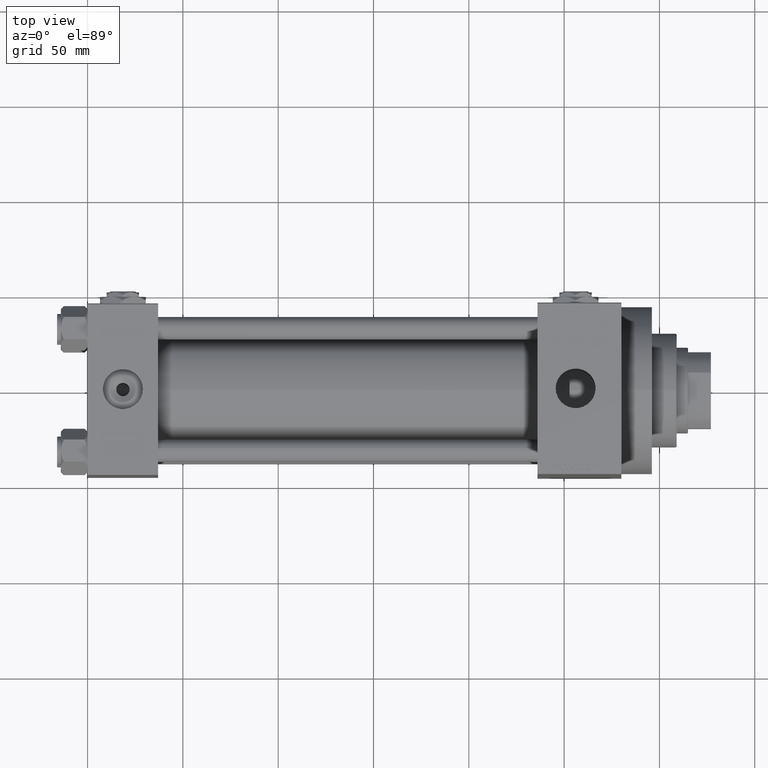
[diagram: clean part render]
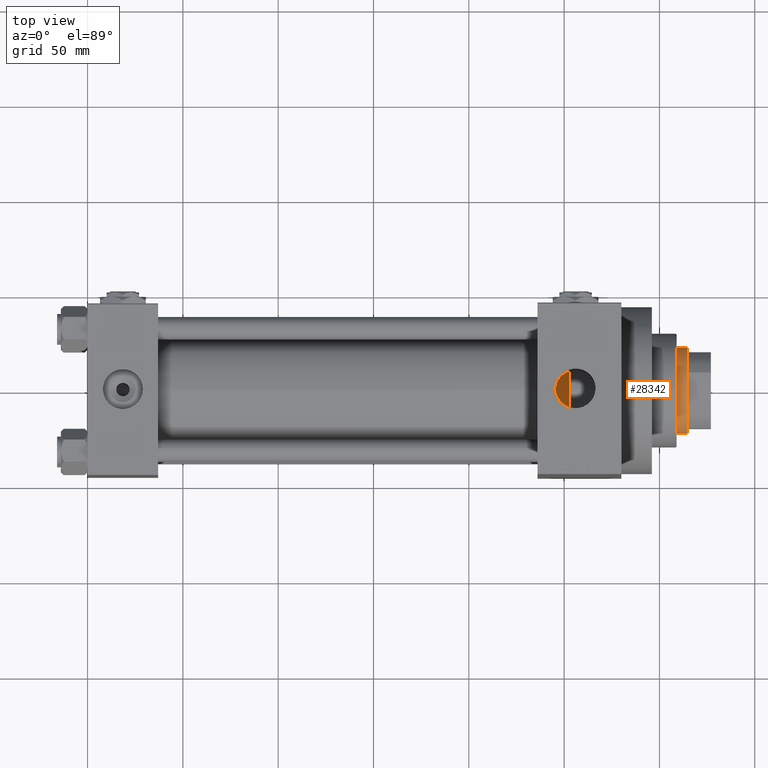
[diagram: same view with one face highlighted and labeled with its STEP entity id]
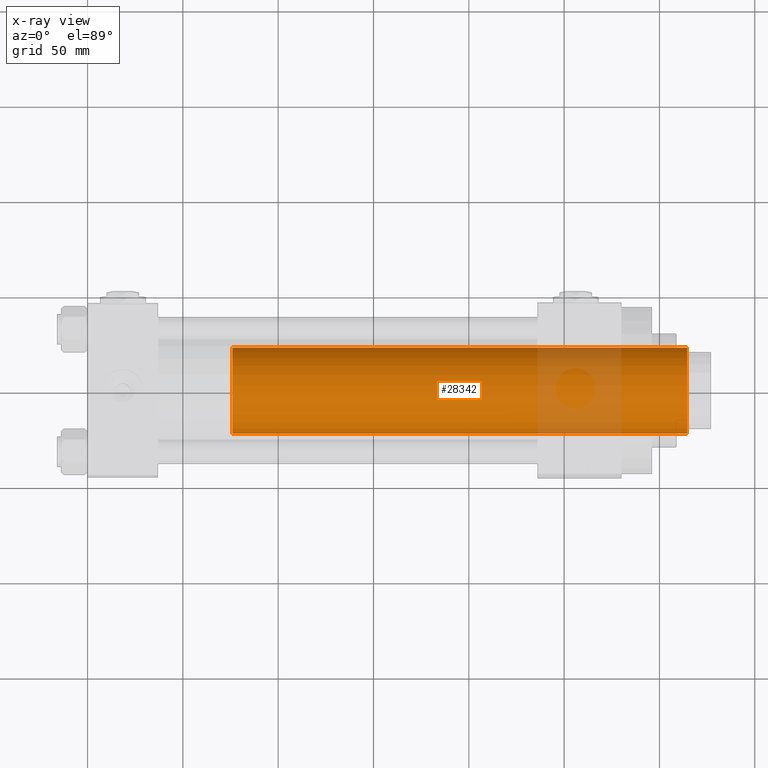
[diagram: x-ray of the same camera — body ghosted, the highlighted face saturated]
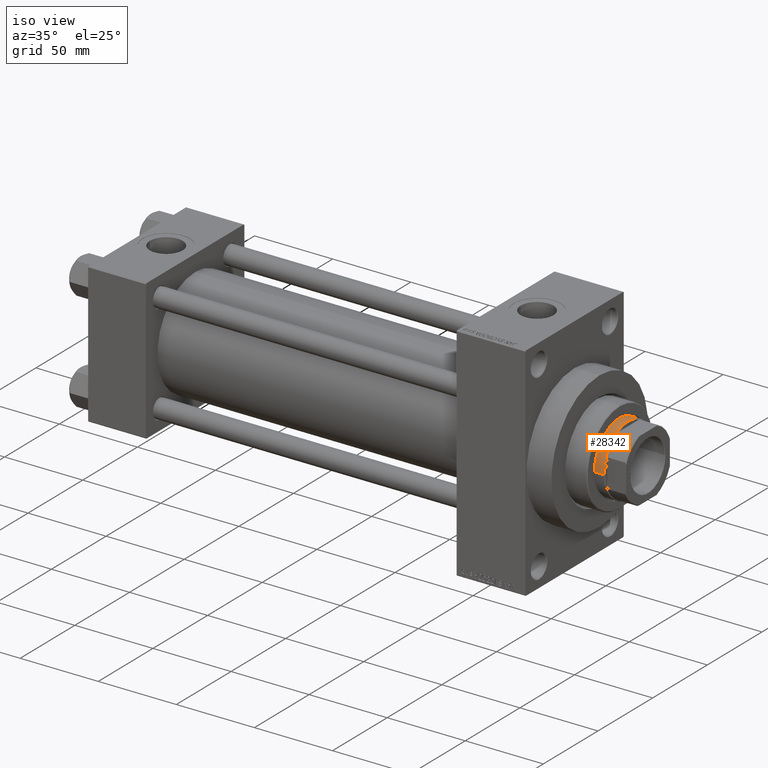
[diagram: same view with one face highlighted and labeled with its STEP entity id]
A machine part, top view. The second image highlights one B-rep face of the part: STEP entity #28342.
The next image is the same camera in x-ray: the body ghosted, the highlighted face saturated — about 15% of this face is hidden behind the body in this view.
A second angle (iso view) of the same face is appended — the face is thin or edge-on in the first view.
In plain terms, the highlighted cylindrical surface (partial cylindrical patch) has radius 22.5 mm, axis along (-1, 0, 0).
Its self-contained STEP definition (entity closure, byte-faithful):
#23 = VERTEX_POINT ( 'NONE', #17678 ) ;
#441 = CARTESIAN_POINT ( 'NONE',  ( 0.000000000000000000, 0.000000000000000000, 277.5000000000000568 ) ) ;
#875 = CYLINDRICAL_SURFACE ( 'NONE', #30283, 22.50000000000000355 ) ;
#1568 = VECTOR ( 'NONE', #38354, 1000.000000000000000 ) ;
#1728 = DIRECTION ( 'NONE',  ( 1.000000000000000000, 0.000000000000000000, 0.000000000000000000 ) ) ;
#2347 = AXIS2_PLACEMENT_3D ( 'NONE', #24879, #35841, #1728 ) ;
#3030 = LINE ( 'NONE', #14985, #34908 ) ;
#3515 = EDGE_LOOP ( 'NONE', ( #38012, #36289, #31290, #42846 ) ) ;
#7900 = DIRECTION ( 'NONE',  ( 0.000000000000000000, 0.000000000000000000, -1.000000000000000000 ) ) ;
#8330 = FACE_OUTER_BOUND ( 'NONE', #3515, .T. ) ;
#11203 = CARTESIAN_POINT ( 'NONE',  ( -22.50000000000000355, 0.000000000000000000, 277.9999999999999432 ) ) ;
#11682 = EDGE_CURVE ( 'NONE', #47273, #23, #42547, .T. ) ;
#14985 = CARTESIAN_POINT ( 'NONE',  ( 22.50000000000000355, 2.755455298081544383E-15, 277.9999999999999432 ) ) ;
#17678 = CARTESIAN_POINT ( 'NONE',  ( -22.50000000000000355, 0.000000000000000000, 277.5000000000000568 ) ) ;
#20123 = EDGE_CURVE ( 'NONE', #47273, #46227, #3030, .T. ) ;
#20342 = CARTESIAN_POINT ( 'NONE',  ( -22.50000000000000355, 0.000000000000000000, 39.00000000000000000 ) ) ;
#22441 = EDGE_CURVE ( 'NONE', #33272, #46227, #31782, .T. ) ;
#22679 = LINE ( 'NONE', #11203, #1568 ) ;
#24879 = CARTESIAN_POINT ( 'NONE',  ( 0.000000000000000000, 0.000000000000000000, 39.00000000000000000 ) ) ;
#25912 = EDGE_CURVE ( 'NONE', #23, #33272, #22679, .T. ) ;
#26607 = DIRECTION ( 'NONE',  ( 1.000000000000000000, 0.000000000000000000, 0.000000000000000000 ) ) ;
#28342 = ADVANCED_FACE ( 'NONE', ( #8330 ), #875, .T. ) ;
#30283 = AXIS2_PLACEMENT_3D ( 'NONE', #46693, #34979, #31251 ) ;
#31251 = DIRECTION ( 'NONE',  ( -1.000000000000000000, 0.000000000000000000, 0.000000000000000000 ) ) ;
#31290 = ORIENTED_EDGE ( 'NONE', *, *, #25912, .T. ) ;
#31782 = CIRCLE ( 'NONE', #2347, 22.50000000000000355 ) ;
#33272 = VERTEX_POINT ( 'NONE', #20342 ) ;
#34908 = VECTOR ( 'NONE', #36922, 1000.000000000000000 ) ;
#34979 = DIRECTION ( 'NONE',  ( -0.000000000000000000, -0.000000000000000000, -1.000000000000000000 ) ) ;
#35841 = DIRECTION ( 'NONE',  ( 0.000000000000000000, 0.000000000000000000, 1.000000000000000000 ) ) ;
#36289 = ORIENTED_EDGE ( 'NONE', *, *, #11682, .T. ) ;
#36922 = DIRECTION ( 'NONE',  ( -0.000000000000000000, -0.000000000000000000, -1.000000000000000000 ) ) ;
#38012 = ORIENTED_EDGE ( 'NONE', *, *, #20123, .F. ) ;
#38354 = DIRECTION ( 'NONE',  ( -0.000000000000000000, -0.000000000000000000, -1.000000000000000000 ) ) ;
#42547 = CIRCLE ( 'NONE', #43330, 22.50000000000000355 ) ;
#42846 = ORIENTED_EDGE ( 'NONE', *, *, #22441, .T. ) ;
#43330 = AXIS2_PLACEMENT_3D ( 'NONE', #441, #7900, #26607 ) ;
#46227 = VERTEX_POINT ( 'NONE', #48993 ) ;
#46693 = CARTESIAN_POINT ( 'NONE',  ( 0.000000000000000000, 0.000000000000000000, 277.9999999999999432 ) ) ;
#47273 = VERTEX_POINT ( 'NONE', #47486 ) ;
#47486 = CARTESIAN_POINT ( 'NONE',  ( 22.50000000000000355, 2.755455298081544383E-15, 277.5000000000000568 ) ) ;
#48993 = CARTESIAN_POINT ( 'NONE',  ( 22.50000000000000355, 2.755455298081544383E-15, 39.00000000000000000 ) ) ;